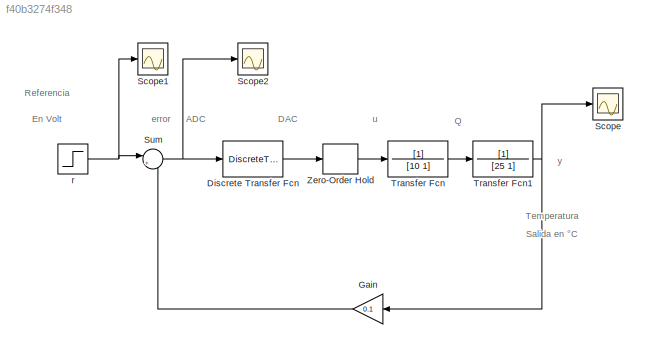
MODEL slx_f40b3274f348
KIND model
CONFIG AbsTol = auto
CONFIG FixedStep = auto
CONFIG MaxStep = auto
CONFIG MinStep = auto
CONFIG RelTol = 1e-3
CONFIG SampleTimeConstraint = Unconstrained
CONFIG Solver = ode45
CONFIG SolverMode = Auto
CONFIG SolverName = ode45
CONFIG StartTime = 0.0
CONFIG StopTime = 200
BLOCK [DiscreteTransferFcn] Discrete Transfer Fcn
  Denominator = [1]
  InputPortMap = u0
  Numerator = [Kp]
  Ports = [1, 1]
  SampleTime = Ts
BLOCK [Gain] Gain
  Gain = 0.1
  OutDataTypeStr = Inherit: Inherit via internal rule
  ParamDataTypeStr = Inherit: Inherit via internal rule
  SaturateOnIntegerOverflow = off
BLOCK [Scope] Scope
  DataFormat = StructureWithTime
  Floating = off
  LimitDataPoints = off
  NumInputPorts = 1
  Ports = [1]
  SaveName = Salida
  SaveToWorkspace = on
BLOCK [Scope] Scope1
  DataFormat = StructureWithTime
  Floating = off
  LimitDataPoints = off
  NumInputPorts = 1
  Ports = [1]
  SaveName = Referencia
  SaveToWorkspace = on
BLOCK [Scope] Scope2
  DataFormat = StructureWithTime
  Floating = off
  LimitDataPoints = off
  NumInputPorts = 1
  Ports = [1]
  SaveName = Error
  SaveToWorkspace = on
BLOCK [Sum] Sum
  IconShape = round
  InputSameDT = off
  Inputs = |+-
  OutDataTypeStr = Inherit: Inherit via internal rule
  Ports = [2, 1]
  SaturateOnIntegerOverflow = off
BLOCK [TransferFcn] Transfer Fcn
  Denominator = [10 1]
BLOCK [TransferFcn] Transfer Fcn1
  Denominator = [25 1]
BLOCK [ZeroOrderHold] Zero-Order Hold
  SampleTime = Ts
BLOCK [Step] r
  After = r
  SampleTime = 0
  Time = 0
ANNOTATION (root): ADC
ANNOTATION (root): DAC
ANNOTATION (root): En Volt
ANNOTATION (root): Q
ANNOTATION (root): Referencia
ANNOTATION (root): Salida en °C
ANNOTATION (root): Temperatura
ANNOTATION (root): error
ANNOTATION (root): u
ANNOTATION (root): y
LINE Discrete Transfer Fcn:1 -> Zero-Order Hold:1
LINE Gain:1 -> Sum:2
NET Sum:1 -> Discrete Transfer Fcn:1, Scope2:1
NET Transfer Fcn1:1 -> Gain:1, Scope:1
LINE Transfer Fcn:1 -> Transfer Fcn1:1
LINE Zero-Order Hold:1 -> Transfer Fcn:1
NET r:1 -> Scope1:1, Sum:1
note: NET lines group one-source signal fan-out (src -> all destinations, sorted); 1:1 wires keep LINE
